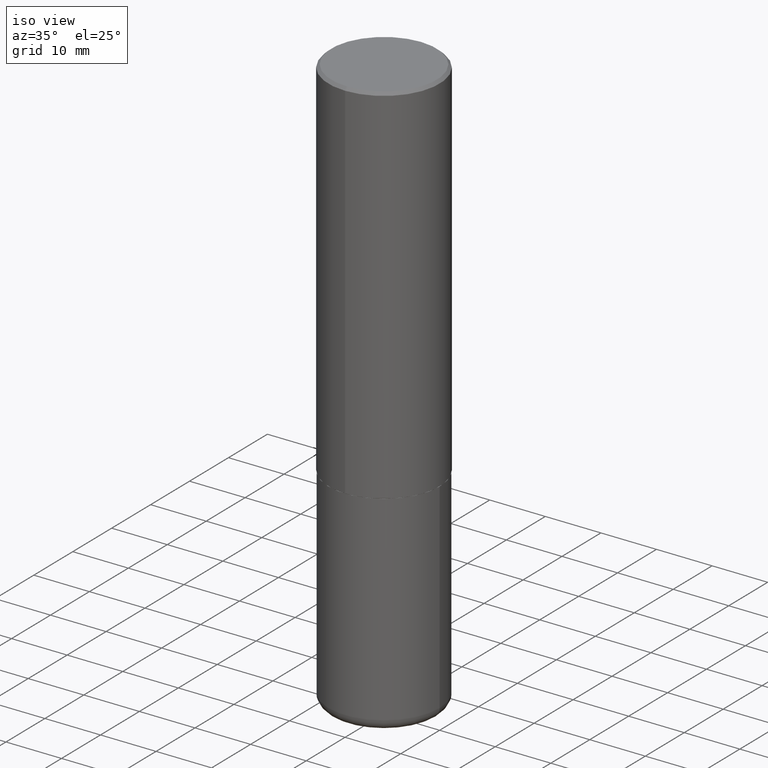
[diagram: clean part render]
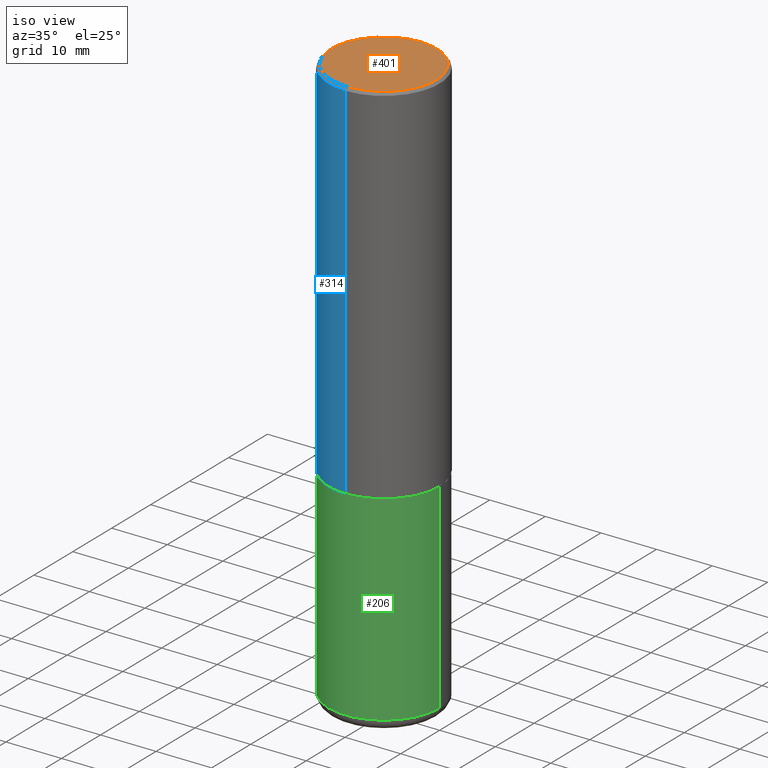
[diagram: same view with three faces highlighted in distinct colors, each labeled with its STEP entity id]
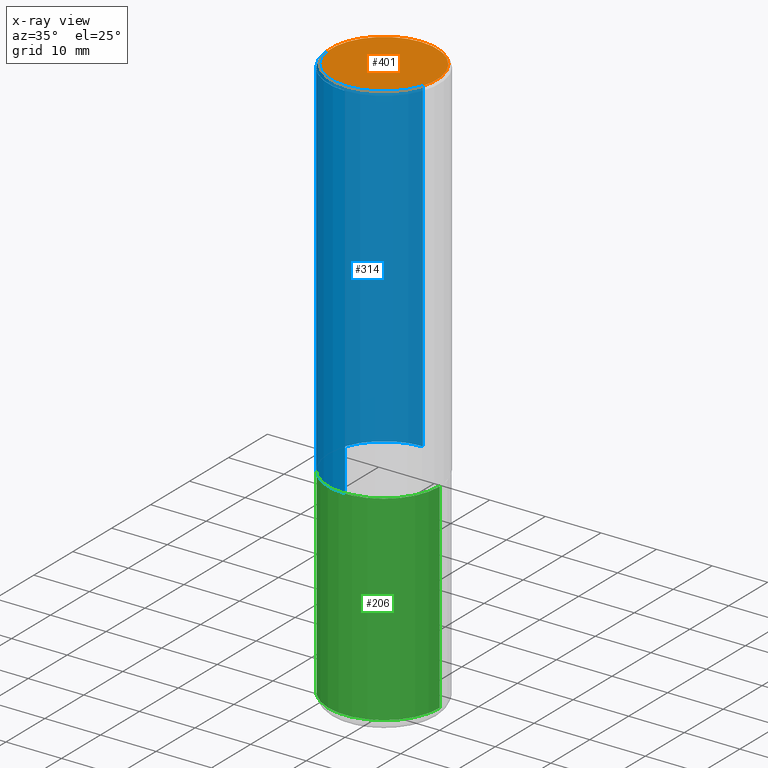
[diagram: x-ray of the same camera — body ghosted, the three highlighted faces saturated]
A machine part, iso view with three faces highlighted in distinct colors.
The next image is the same camera in x-ray (body ghosted, the three faces saturated) — at least one of them is partly hidden behind the body in this view.
Their STEP definitions:

[orange] entity #401 — the highlighted planar face has unit normal (0, -0, -1).
#35 = CARTESIAN_POINT ( 'NONE',  ( 2.679362779428219524E-15, 0.3736999999999997546, -1.095609464310762333E-15 ) ) ;
#52 = DIRECTION ( 'NONE',  ( -6.982962677686265922E-15, -1.000000000000000000, 3.492068478421695064E-15 ) ) ;
#53 = ORIENTED_EDGE ( 'NONE', *, *, #320, .T. ) ;
#62 = CARTESIAN_POINT ( 'NONE',  ( 2.609533152651355831E-15, 0.3736999999999997546, -1.200297727348474625E-15 ) ) ;
#65 = ORIENTED_EDGE ( 'NONE', *, *, #237, .T. ) ;
#71 = CARTESIAN_POINT ( 'NONE',  ( -5.119379194384959481E-45, 7.311571668294261102E-31, 2.093765260754239936E-16 ) ) ;
#94 = DIRECTION ( 'NONE',  ( 6.982962677686265922E-15, 1.000000000000000000, -3.492068478421695064E-15 ) ) ;
#172 = AXIS2_PLACEMENT_3D ( 'NONE', #402, #404, #52 ) ;
#189 = VERTEX_POINT ( 'NONE', #35 ) ;
#191 = DIRECTION ( 'NONE',  ( -6.982962677686265922E-15, -1.000000000000000000, 3.492068478421695064E-15 ) ) ;
#197 = DIRECTION ( 'NONE',  ( -2.445058808808776392E-29, 3.492068478421694670E-15, 1.000000000000000000 ) ) ;
#217 = PLANE ( 'NONE',  #294 ) ;
#237 = EDGE_CURVE ( 'NONE', #293, #189, #300, .T. ) ;
#260 = CARTESIAN_POINT ( 'NONE',  ( -2.632373081744935132E-15, -0.3736999999999997546, 1.514362516461610517E-15 ) ) ;
#274 = EDGE_LOOP ( 'NONE', ( #53, #65 ) ) ;
#283 = DIRECTION ( 'NONE',  ( 2.445058808808775831E-29, -3.492068478421695064E-15, -1.000000000000000000 ) ) ;
#293 = VERTEX_POINT ( 'NONE', #260 ) ;
#294 = AXIS2_PLACEMENT_3D ( 'NONE', #62, #283, #94 ) ;
#300 = CIRCLE ( 'NONE', #418, 0.3736999999999997546 ) ;
#307 = CIRCLE ( 'NONE', #172, 0.3736999999999997546 ) ;
#320 = EDGE_CURVE ( 'NONE', #189, #293, #307, .T. ) ;
#401 = ADVANCED_FACE ( 'NONE', ( #415 ), #217, .F. ) ;
#402 = CARTESIAN_POINT ( 'NONE',  ( -5.119379194384959481E-45, 7.311571668294261102E-31, 2.093765260754239936E-16 ) ) ;
#404 = DIRECTION ( 'NONE',  ( -2.445058808808776392E-29, 3.492068478421694670E-15, 1.000000000000000000 ) ) ;
#415 = FACE_OUTER_BOUND ( 'NONE', #274, .T. ) ;
#418 = AXIS2_PLACEMENT_3D ( 'NONE', #71, #197, #191 ) ;

[blue] entity #314 — the highlighted cylindrical surface (partial cylindrical patch) has radius 10 mm, axis along (-0, 0, 1).
#3 = CARTESIAN_POINT ( 'NONE',  ( 2.797406750687547524E-15, 0.3936999999999912236, -2.597400000000002152 ) ) ;
#49 = VERTEX_POINT ( 'NONE', #390 ) ;
#66 = AXIS2_PLACEMENT_3D ( 'NONE', #210, #243, #350 ) ;
#77 = LINE ( 'NONE', #113, #377 ) ;
#81 = EDGE_LOOP ( 'NONE', ( #84, #117, #341, #178 ) ) ;
#83 = CYLINDRICAL_SURFACE ( 'NONE', #66, 0.3937000000000001609 ) ;
#84 = ORIENTED_EDGE ( 'NONE', *, *, #346, .F. ) ;
#88 = CARTESIAN_POINT ( 'NONE',  ( 4.890117617617573732E-31, -6.984136956843418330E-17, -0.02000000000000008715 ) ) ;
#89 = CARTESIAN_POINT ( 'NONE',  ( 2.749192406205083217E-15, 0.3936999999999999389, -0.02000000000000146105 ) ) ;
#91 = VERTEX_POINT ( 'NONE', #3 ) ;
#101 = VECTOR ( 'NONE', #184, 39.37007874015748143 ) ;
#113 = CARTESIAN_POINT ( 'NONE',  ( 2.797406750687515181E-15, 0.3937000000000001609, -1.374827359954621742E-15 ) ) ;
#117 = ORIENTED_EDGE ( 'NONE', *, *, #336, .T. ) ;
#138 = DIRECTION ( 'NONE',  ( -2.445058808808776111E-29, 3.492068478421695064E-15, 1.000000000000000000 ) ) ;
#139 = DIRECTION ( 'NONE',  ( -2.445058808808776392E-29, 3.492068478421694670E-15, 1.000000000000000000 ) ) ;
#146 = VERTEX_POINT ( 'NONE', #89 ) ;
#147 = CARTESIAN_POINT ( 'NONE',  ( -2.700978061722651252E-15, -0.3937000000000001054, -0.01999999999999870978 ) ) ;
#178 = ORIENTED_EDGE ( 'NONE', *, *, #389, .F. ) ;
#183 = CIRCLE ( 'NONE', #365, 0.3937000000000000499 ) ;
#184 = DIRECTION ( 'NONE',  ( -2.445058808808776111E-29, 3.492068478421695064E-15, 1.000000000000000000 ) ) ;
#210 = CARTESIAN_POINT ( 'NONE',  ( 0.000000000000000000, 0.000000000000000000, 0.000000000000000000 ) ) ;
#221 = DIRECTION ( 'NONE',  ( -6.982962677686265133E-15, -1.000000000000000000, 3.491137977679279424E-15 ) ) ;
#224 = LINE ( 'NONE', #252, #101 ) ;
#243 = DIRECTION ( 'NONE',  ( -2.445058808808776392E-29, 3.492068478421694670E-15, 1.000000000000000000 ) ) ;
#248 = CIRCLE ( 'NONE', #382, 0.3937000000000002720 ) ;
#252 = CARTESIAN_POINT ( 'NONE',  ( -2.749192406205084005E-15, -0.3937000000000001609, 1.374827359954621742E-15 ) ) ;
#309 = FACE_OUTER_BOUND ( 'NONE', #81, .T. ) ;
#314 = ADVANCED_FACE ( 'NONE', ( #309 ), #83, .T. ) ;
#315 = CARTESIAN_POINT ( 'NONE',  ( 6.350795749999916474E-29, -9.070298665852512644E-15, -2.597400000000000375 ) ) ;
#325 = DIRECTION ( 'NONE',  ( -2.445058808808776392E-29, 3.492068478421694670E-15, 1.000000000000000000 ) ) ;
#336 = EDGE_CURVE ( 'NONE', #91, #49, #248, .T. ) ;
#341 = ORIENTED_EDGE ( 'NONE', *, *, #407, .T. ) ;
#346 = EDGE_CURVE ( 'NONE', #91, #146, #77, .T. ) ;
#350 = DIRECTION ( 'NONE',  ( -6.982962677686265922E-15, -1.000000000000000000, 3.492068478421694670E-15 ) ) ;
#365 = AXIS2_PLACEMENT_3D ( 'NONE', #88, #325, #221 ) ;
#374 = DIRECTION ( 'NONE',  ( -6.982962677686265922E-15, -1.000000000000000000, 4.163344669033672479E-15 ) ) ;
#377 = VECTOR ( 'NONE', #138, 39.37007874015748143 ) ;
#379 = VERTEX_POINT ( 'NONE', #147 ) ;
#382 = AXIS2_PLACEMENT_3D ( 'NONE', #315, #139, #374 ) ;
#389 = EDGE_CURVE ( 'NONE', #146, #379, #183, .T. ) ;
#390 = CARTESIAN_POINT ( 'NONE',  ( -2.749192406205021291E-15, -0.3937000000000093758, -2.597399999999999043 ) ) ;
#407 = EDGE_CURVE ( 'NONE', #49, #379, #224, .T. ) ;

[green] entity #206 — the highlighted cylindrical surface (partial cylindrical patch) has radius 10 mm, axis along (-0, 0, 1).
#5 = CARTESIAN_POINT ( 'NONE',  ( 9.820513631878272860E-29, -1.402109076052630500E-14, -4.015800000000000480 ) ) ;
#10 = DIRECTION ( 'NONE',  ( -2.445468806185136877E-29, 3.491481338843145188E-15, 1.000000000000000000 ) ) ;
#12 = LINE ( 'NONE', #38, #92 ) ;
#13 = DIRECTION ( 'NONE',  ( 1.000000000000000000, -6.982962677686267499E-15, 0.000000000000000000 ) ) ;
#15 = VECTOR ( 'NONE', #397, 39.37007874015748143 ) ;
#26 = CARTESIAN_POINT ( 'NONE',  ( -0.3937000000000000499, -8.749271185000653235E-15, -2.598400000000000265 ) ) ;
#38 = CARTESIAN_POINT ( 'NONE',  ( -0.3937000000000000499, 2.797406750687514786E-15, -1.936584745033356735E-29 ) ) ;
#39 = AXIS2_PLACEMENT_3D ( 'NONE', #169, #160, #76 ) ;
#42 = CARTESIAN_POINT ( 'NONE',  ( 0.3937000000000000499, -2.749192406205083217E-15, 1.919750796630860172E-29 ) ) ;
#43 = CARTESIAN_POINT ( 'NONE',  ( 0.3936999999999999389, -1.677028316673138822E-14, -4.015800000000000480 ) ) ;
#44 = CARTESIAN_POINT ( 'NONE',  ( 0.3937000000000000499, -1.182145751705511584E-14, -2.598400000000000265 ) ) ;
#48 = ORIENTED_EDGE ( 'NONE', *, *, #261, .T. ) ;
#60 = CARTESIAN_POINT ( 'NONE',  ( -0.3936999999999999389, -1.122368400983879100E-14, -4.015800000000000480 ) ) ;
#75 = LINE ( 'NONE', #42, #15 ) ;
#76 = DIRECTION ( 'NONE',  ( 1.000000000000000000, -6.982962677686265922E-15, 4.876176775795935793E-29 ) ) ;
#90 = EDGE_CURVE ( 'NONE', #403, #285, #282, .T. ) ;
#92 = VECTOR ( 'NONE', #10, 39.37007874015748143 ) ;
#97 = DIRECTION ( 'NONE',  ( 1.000000000000000000, -6.982962677686267499E-15, 0.000000000000000000 ) ) ;
#99 = CARTESIAN_POINT ( 'NONE',  ( 6.354306145991459756E-29, -9.072265110850031044E-15, -2.598400000000000265 ) ) ;
#120 = ORIENTED_EDGE ( 'NONE', *, *, #222, .F. ) ;
#134 = FACE_OUTER_BOUND ( 'NONE', #347, .T. ) ;
#143 = VERTEX_POINT ( 'NONE', #26 ) ;
#157 = ORIENTED_EDGE ( 'NONE', *, *, #90, .T. ) ;
#160 = DIRECTION ( 'NONE',  ( -2.445468806185136597E-29, 3.491481338843145583E-15, 1.000000000000000000 ) ) ;
#169 = CARTESIAN_POINT ( 'NONE',  ( 0.000000000000000000, 0.000000000000000000, 0.000000000000000000 ) ) ;
#206 = ADVANCED_FACE ( 'NONE', ( #134 ), #234, .T. ) ;
#209 = CIRCLE ( 'NONE', #364, 0.3937000000000000499 ) ;
#222 = EDGE_CURVE ( 'NONE', #403, #143, #12, .T. ) ;
#234 = CYLINDRICAL_SURFACE ( 'NONE', #39, 0.3937000000000000499 ) ;
#253 = DIRECTION ( 'NONE',  ( -2.445468806185136597E-29, 3.491481338843145583E-15, 1.000000000000000000 ) ) ;
#261 = EDGE_CURVE ( 'NONE', #285, #329, #75, .T. ) ;
#267 = EDGE_CURVE ( 'NONE', #143, #329, #209, .T. ) ;
#282 = CIRCLE ( 'NONE', #348, 0.3937000000000000499 ) ;
#285 = VERTEX_POINT ( 'NONE', #43 ) ;
#310 = ORIENTED_EDGE ( 'NONE', *, *, #267, .F. ) ;
#329 = VERTEX_POINT ( 'NONE', #44 ) ;
#334 = DIRECTION ( 'NONE',  ( -2.445468806185136597E-29, 3.491481338843145583E-15, 1.000000000000000000 ) ) ;
#347 = EDGE_LOOP ( 'NONE', ( #120, #157, #48, #310 ) ) ;
#348 = AXIS2_PLACEMENT_3D ( 'NONE', #5, #253, #97 ) ;
#364 = AXIS2_PLACEMENT_3D ( 'NONE', #99, #334, #13 ) ;
#397 = DIRECTION ( 'NONE',  ( -2.445468806185136877E-29, 3.491481338843145188E-15, 1.000000000000000000 ) ) ;
#403 = VERTEX_POINT ( 'NONE', #60 ) ;